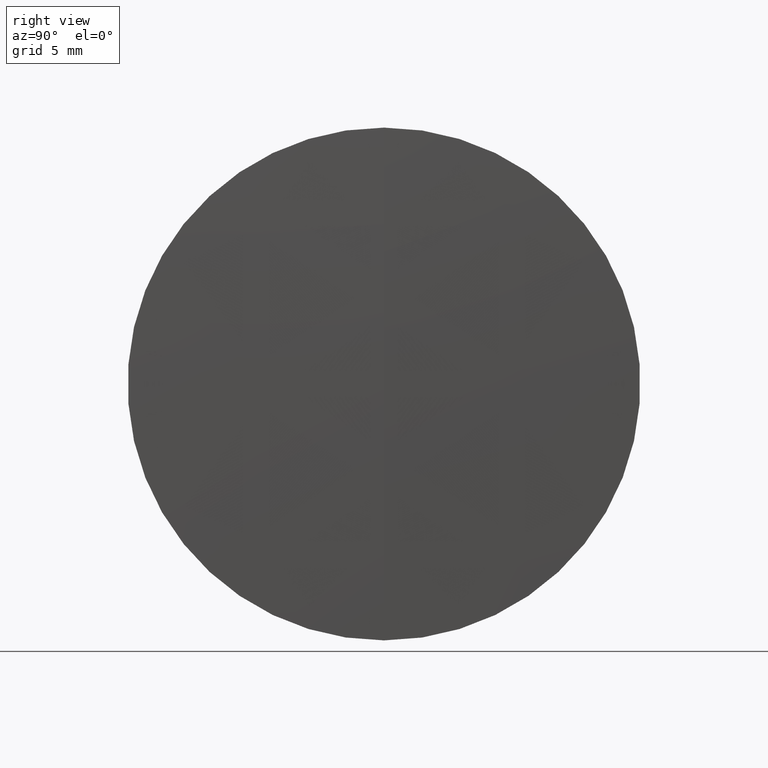
[diagram: clean part render]
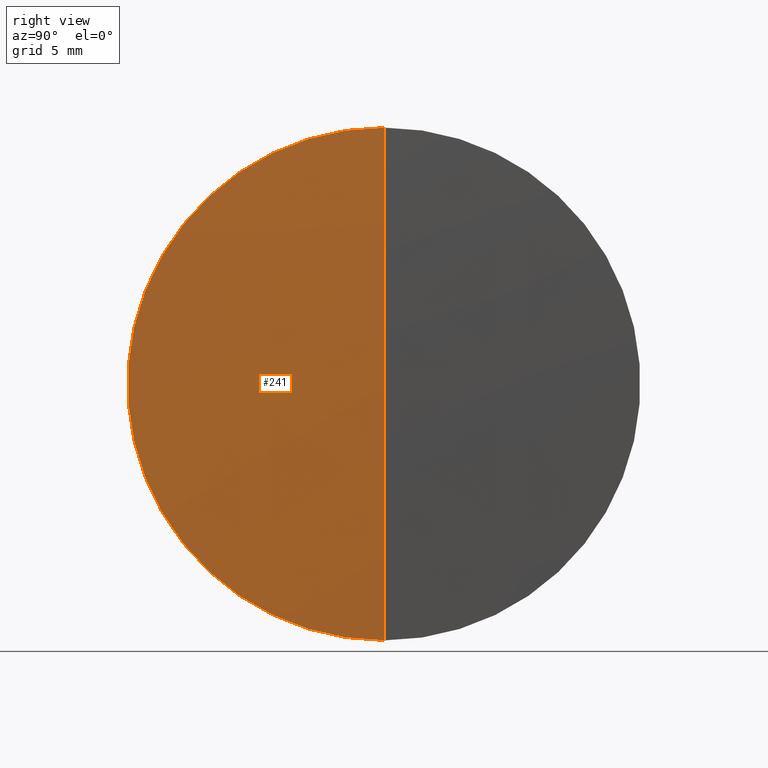
[diagram: same view with one face highlighted and labeled with its STEP entity id]
A machine part, right view. The second image highlights one B-rep face of the part: STEP entity #241.
In plain terms, the highlighted spherical surface has radius 420.55 mm.
Its self-contained STEP definition (entity closure, byte-faithful):
#1 = CIRCLE ( 'NONE', #112, 420.5500000000000100 ) ;
#24 = AXIS2_PLACEMENT_3D ( 'NONE', #320, #141, #122 ) ;
#47 = DIRECTION ( 'NONE',  ( 0.0000000000000000000, 1.000000000000000000, 0.0000000000000000000 ) ) ;
#54 = CARTESIAN_POINT ( 'NONE',  ( -275.8903310264252600, 0.0000000000000000000, 0.0000000000000000000 ) ) ;
#61 = CARTESIAN_POINT ( 'NONE',  ( -275.8903310264252600, 0.0000000000000000000, 0.0000000000000000000 ) ) ;
#63 = EDGE_CURVE ( 'NONE', #251, #330, #1, .T. ) ;
#75 = SPHERICAL_SURFACE ( 'NONE', #138, 420.5500000000000100 ) ;
#76 = CARTESIAN_POINT ( 'NONE',  ( 144.4738592895435300, 1.530808498934196100E-015, -12.50000000000002000 ) ) ;
#83 = VERTEX_POINT ( 'NONE', #76 ) ;
#93 = CARTESIAN_POINT ( 'NONE',  ( -275.8903310264252600, 0.0000000000000000000, 0.0000000000000000000 ) ) ;
#108 = EDGE_CURVE ( 'NONE', #83, #330, #294, .T. ) ;
#112 = AXIS2_PLACEMENT_3D ( 'NONE', #54, #291, #289 ) ;
#122 = DIRECTION ( 'NONE',  ( 0.0000000000000000000, 0.0000000000000000000, 1.000000000000000000 ) ) ;
#131 = EDGE_LOOP ( 'NONE', ( #177, #318, #187 ) ) ;
#138 = AXIS2_PLACEMENT_3D ( 'NONE', #93, #47, #263 ) ;
#139 = DIRECTION ( 'NONE',  ( -0.0000000000000000000, 1.000000000000000000, 1.224646799147353200E-016 ) ) ;
#141 = DIRECTION ( 'NONE',  ( -1.000000000000000000, -0.0000000000000000000, -0.0000000000000000000 ) ) ;
#153 = EDGE_CURVE ( 'NONE', #251, #83, #173, .T. ) ;
#173 = CIRCLE ( 'NONE', #302, 420.5500000000000100 ) ;
#177 = ORIENTED_EDGE ( 'NONE', *, *, #153, .F. ) ;
#187 = ORIENTED_EDGE ( 'NONE', *, *, #108, .F. ) ;
#222 = FACE_OUTER_BOUND ( 'NONE', #131, .T. ) ;
#228 = CARTESIAN_POINT ( 'NONE',  ( 144.6596689735747800, 0.0000000000000000000, 2.575126056907097100E-014 ) ) ;
#241 = ADVANCED_FACE ( 'NONE', ( #222 ), #75, .T. ) ;
#251 = VERTEX_POINT ( 'NONE', #228 ) ;
#252 = CARTESIAN_POINT ( 'NONE',  ( 144.4738592895435300, 0.0000000000000000000, 12.50000000000002000 ) ) ;
#263 = DIRECTION ( 'NONE',  ( 0.0000000000000000000, 0.0000000000000000000, 1.000000000000000000 ) ) ;
#289 = DIRECTION ( 'NONE',  ( 0.0000000000000000000, 0.0000000000000000000, -1.000000000000000000 ) ) ;
#291 = DIRECTION ( 'NONE',  ( 0.0000000000000000000, -1.000000000000000000, 0.0000000000000000000 ) ) ;
#294 = CIRCLE ( 'NONE', #24, 12.50000000000002000 ) ;
#302 = AXIS2_PLACEMENT_3D ( 'NONE', #61, #139, #325 ) ;
#318 = ORIENTED_EDGE ( 'NONE', *, *, #63, .T. ) ;
#320 = CARTESIAN_POINT ( 'NONE',  ( 144.4738592895435300, 0.0000000000000000000, 0.0000000000000000000 ) ) ;
#325 = DIRECTION ( 'NONE',  ( 0.0000000000000000000, -1.224646799147353200E-016, 1.000000000000000000 ) ) ;
#330 = VERTEX_POINT ( 'NONE', #252 ) ;